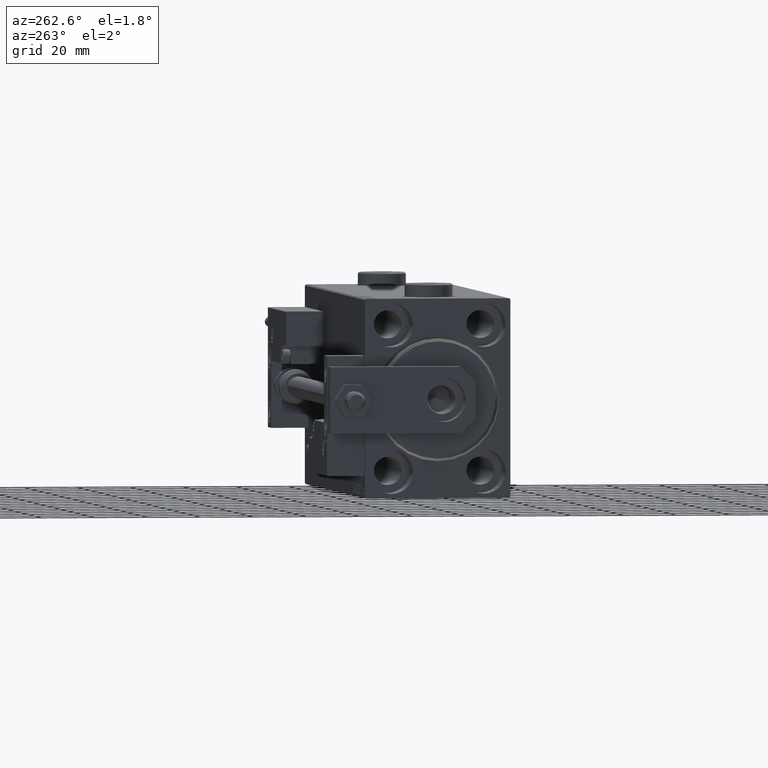
[diagram: clean part render]
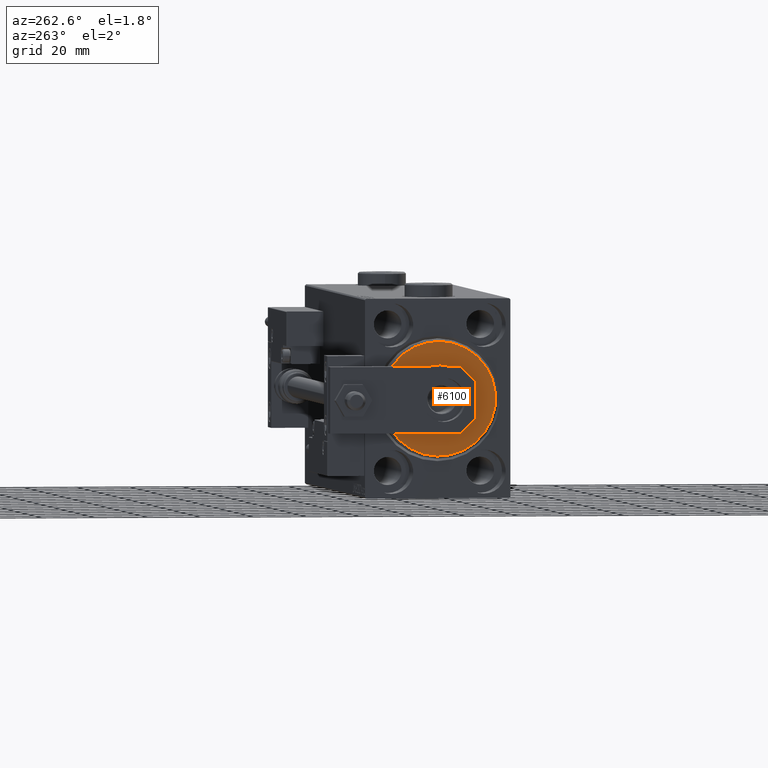
[diagram: same view with one face highlighted and labeled with its STEP entity id]
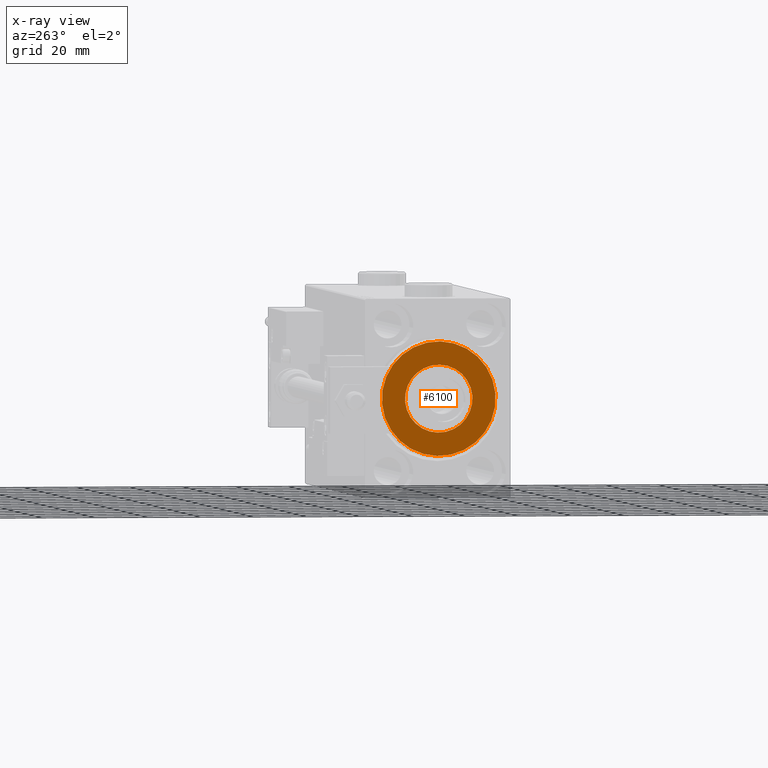
[diagram: x-ray of the same camera — body ghosted, the highlighted face saturated]
A machine part, auxiliary view. The second image highlights one B-rep face of the part: STEP entity #6100.
The next image is the same camera in x-ray: the body ghosted, the highlighted face saturated — about 0% of this face is hidden behind the body in this view.
In plain terms, the highlighted planar face has unit normal (-1, 0, 0).
Its self-contained STEP definition (entity closure, byte-faithful):
#1755 = CIRCLE ( 'NONE', #10925, 12.75000000000000000 ) ;
#1915 = EDGE_CURVE ( 'NONE', #22515, #30858, #42079, .T. ) ;
#2033 = CARTESIAN_POINT ( 'NONE',  ( 3.000000000000000000, 0.000000000000000000, 0.000000000000000000 ) ) ;
#2047 = ORIENTED_EDGE ( 'NONE', *, *, #36795, .T. ) ;
#3253 = DIRECTION ( 'NONE',  ( -1.000000000000000000, 0.000000000000000000, -0.000000000000000000 ) ) ;
#6100 = ADVANCED_FACE ( 'NONE', ( #11316, #6614 ), #10786, .T. ) ;
#6614 = FACE_BOUND ( 'NONE', #29503, .T. ) ;
#7283 = AXIS2_PLACEMENT_3D ( 'NONE', #22761, #44391, #32393 ) ;
#8055 = EDGE_CURVE ( 'NONE', #51276, #31130, #41337, .T. ) ;
#8204 = AXIS2_PLACEMENT_3D ( 'NONE', #22050, #45525, #9825 ) ;
#9415 = DIRECTION ( 'NONE',  ( -1.000000000000000000, 0.000000000000000000, -0.000000000000000000 ) ) ;
#9825 = DIRECTION ( 'NONE',  ( 0.000000000000000000, 0.000000000000000000, -1.000000000000000000 ) ) ;
#10786 = PLANE ( 'NONE',  #7283 ) ;
#10925 = AXIS2_PLACEMENT_3D ( 'NONE', #50156, #3253, #26434 ) ;
#11316 = FACE_OUTER_BOUND ( 'NONE', #12711, .T. ) ;
#11407 = EDGE_CURVE ( 'NONE', #30858, #22515, #21490, .T. ) ;
#11725 = CARTESIAN_POINT ( 'NONE',  ( 3.000000000000000000, 0.000000000000000000, 12.75000000000000000 ) ) ;
#12711 = EDGE_LOOP ( 'NONE', ( #29951, #16156 ) ) ;
#13145 = CARTESIAN_POINT ( 'NONE',  ( 3.000000000000000000, 1.561424668912874914E-15, -12.75000000000000000 ) ) ;
#16156 = ORIENTED_EDGE ( 'NONE', *, *, #1915, .T. ) ;
#17938 = DIRECTION ( 'NONE',  ( 1.000000000000000000, -0.000000000000000000, 0.000000000000000000 ) ) ;
#21490 = CIRCLE ( 'NONE', #8204, 21.50000000000000355 ) ;
#22050 = CARTESIAN_POINT ( 'NONE',  ( 3.000000000000000000, 0.000000000000000000, 0.000000000000000000 ) ) ;
#22515 = VERTEX_POINT ( 'NONE', #51116 ) ;
#22761 = CARTESIAN_POINT ( 'NONE',  ( 3.000000000000000000, 0.000000000000000000, 0.000000000000000000 ) ) ;
#23457 = DIRECTION ( 'NONE',  ( 0.000000000000000000, 0.000000000000000000, -1.000000000000000000 ) ) ;
#26434 = DIRECTION ( 'NONE',  ( 0.000000000000000000, 0.000000000000000000, -1.000000000000000000 ) ) ;
#29503 = EDGE_LOOP ( 'NONE', ( #2047, #41912 ) ) ;
#29951 = ORIENTED_EDGE ( 'NONE', *, *, #11407, .T. ) ;
#30858 = VERTEX_POINT ( 'NONE', #41695 ) ;
#31130 = VERTEX_POINT ( 'NONE', #11725 ) ;
#32393 = DIRECTION ( 'NONE',  ( 0.000000000000000000, 0.000000000000000000, -1.000000000000000000 ) ) ;
#33832 = DIRECTION ( 'NONE',  ( 0.000000000000000000, 0.000000000000000000, -1.000000000000000000 ) ) ;
#36795 = EDGE_CURVE ( 'NONE', #31130, #51276, #1755, .T. ) ;
#41337 = CIRCLE ( 'NONE', #44688, 12.75000000000000000 ) ;
#41695 = CARTESIAN_POINT ( 'NONE',  ( 3.000000000000000000, 0.000000000000000000, 21.50000000000000355 ) ) ;
#41912 = ORIENTED_EDGE ( 'NONE', *, *, #8055, .T. ) ;
#42079 = CIRCLE ( 'NONE', #48748, 21.50000000000000355 ) ;
#44391 = DIRECTION ( 'NONE',  ( 1.000000000000000000, -0.000000000000000000, 0.000000000000000000 ) ) ;
#44688 = AXIS2_PLACEMENT_3D ( 'NONE', #45883, #9415, #23457 ) ;
#45525 = DIRECTION ( 'NONE',  ( 1.000000000000000000, -0.000000000000000000, 0.000000000000000000 ) ) ;
#45883 = CARTESIAN_POINT ( 'NONE',  ( 3.000000000000000000, 0.000000000000000000, 0.000000000000000000 ) ) ;
#48748 = AXIS2_PLACEMENT_3D ( 'NONE', #2033, #17938, #33832 ) ;
#50156 = CARTESIAN_POINT ( 'NONE',  ( 3.000000000000000000, 0.000000000000000000, 0.000000000000000000 ) ) ;
#51116 = CARTESIAN_POINT ( 'NONE',  ( 3.000000000000000000, 2.694222958124177598E-15, -21.50000000000000355 ) ) ;
#51276 = VERTEX_POINT ( 'NONE', #13145 ) ;